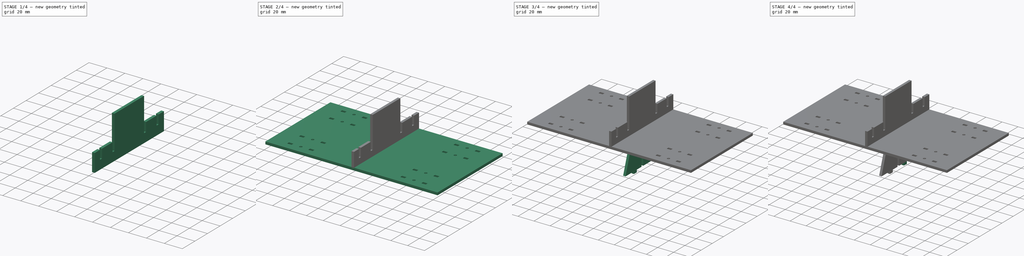
[diagram: build sequence overview — one tinted view per stage of 4, left to right]
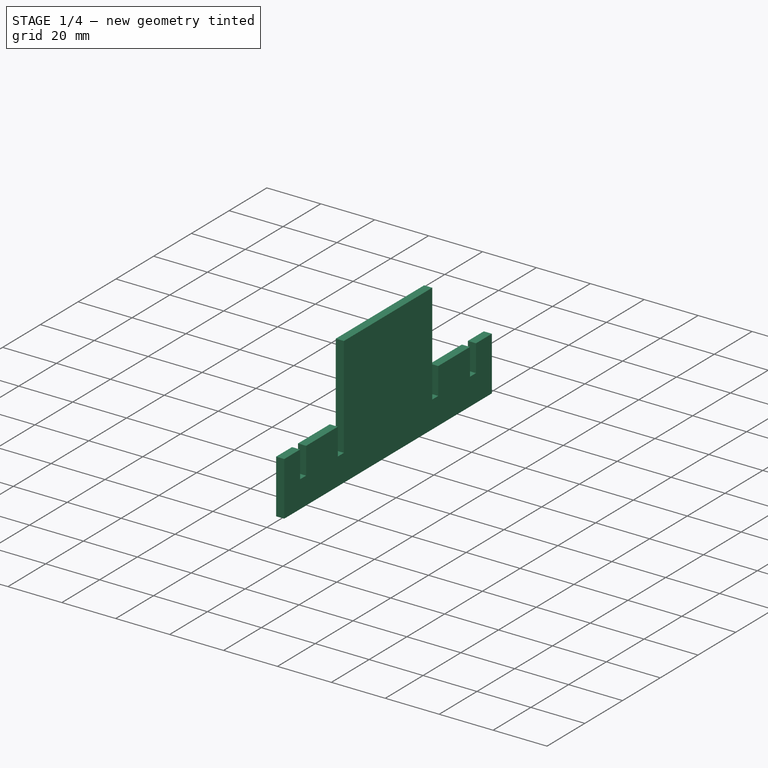
[diagram: stage 1 of 4 — iso view after this stage's code; geometry added in this stage tinted green]
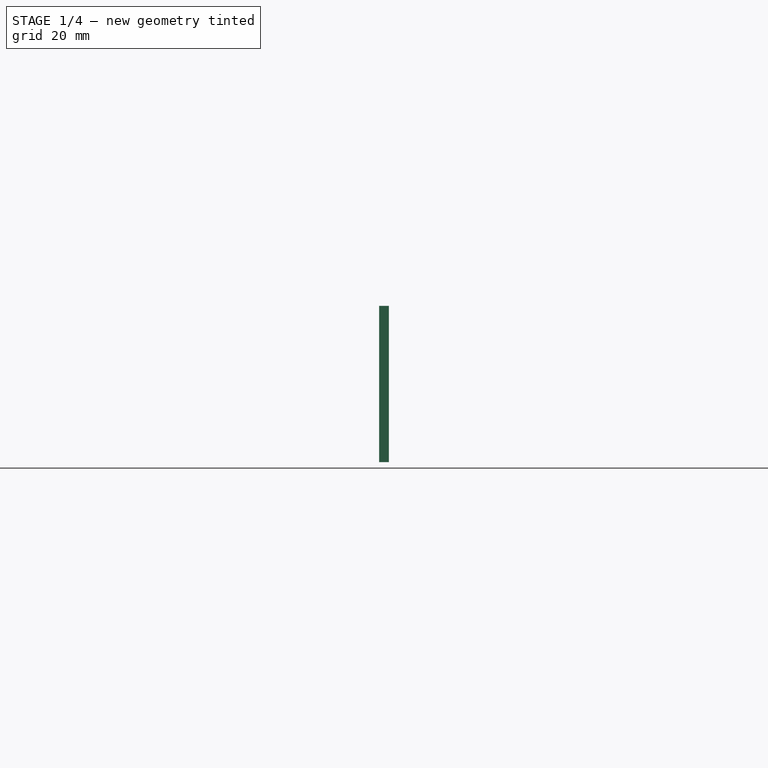
[diagram: stage 1 of 4 — front view after this stage's code; geometry added in this stage tinted green]
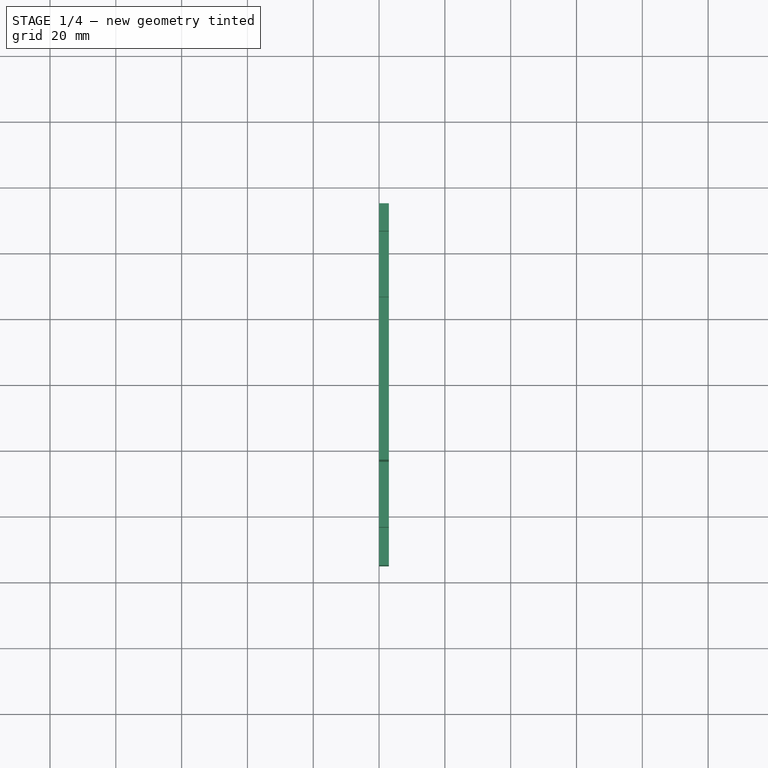
[diagram: stage 1 of 4 — top view after this stage's code; geometry added in this stage tinted green]
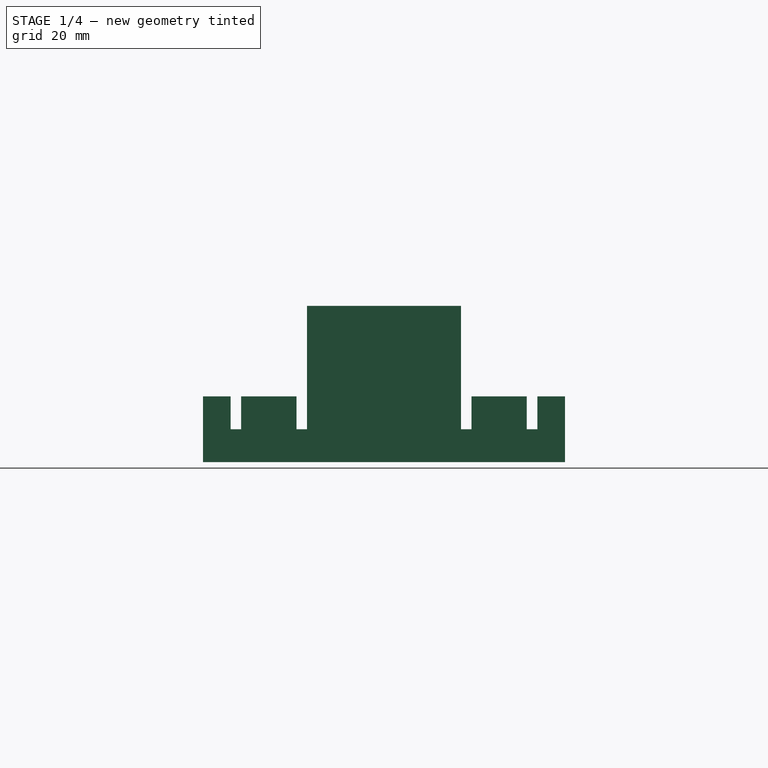
[diagram: stage 1 of 4 — right view after this stage's code; geometry added in this stage tinted green]
FCSTD DOCUMENT  (FreeCAD 0.18.1R)
Label: mount
License: All rights reserved
LicenseURL: http://en.wikipedia.org/wiki/All_rights_reserved
objects: Sketcher::SketchObject×7, PartDesign::Pad×4, PartDesign::Mirrored×4, PartDesign::Pocket×3, PartDesign::Body×3, TechDraw::DrawViewPart×3, PartDesign::LinearPattern×1, PartDesign::MultiTransform×1, TechDraw::DrawSVGTemplate×1, TechDraw::DrawPage×1
note: 30 computed .brp shape members not serialized (recipe doc carries the construction recipe); baked Part::Feature solids carry a one-line shape summary decoded from their .brp

FEATURE [PartDesign::Body] Body001  label="Base"
  Group = -> [Sketch003,Pad002,Sketch004,Pocket001,MultiTransform,LinearPattern,Mirrored001,Mirrored002]
  Origin = -> Origin001
  Tip = -> MultiTransform
FEATURE [Sketcher::SketchObject] Sketch005
  MapMode = 5
  Placement = pos=(0,0,0) rot=(0.57735,0.57735,0.57735;2.0944rad)
  Support = -> [YZ_Plane002]
  expr: Constraints[33] = Sketch.Constraints.motor_height + 20mm
  expr: Constraints[28] = Sketch003.Constraints.base_width / 2
  sketch-geometry (12):
    g0: LineSegment StartX=-55 StartY=0 StartZ=0 EndX=0 EndY=0 EndZ=0
    g1: LineSegment StartX=0 StartY=0 StartZ=0 EndX=0 EndY=47.5 EndZ=0
    g2: LineSegment StartX=0 StartY=47.5 StartZ=0 EndX=-23.4 EndY=47.5 EndZ=0
    g3: LineSegment StartX=-55 StartY=20 StartZ=0 EndX=-55 EndY=0 EndZ=0
    g4: LineSegment StartX=-43.4 StartY=20 StartZ=0 EndX=-43.4 EndY=10 EndZ=0
    g5: LineSegment StartX=-43.4 StartY=10 StartZ=0 EndX=-46.6 EndY=10 EndZ=0
    g6: LineSegment StartX=-46.6 StartY=10 StartZ=0 EndX=-46.6 EndY=20 EndZ=0
    g7: LineSegment StartX=-23.4 StartY=47.5 StartZ=0 EndX=-23.4 EndY=10 EndZ=0
    g8: LineSegment StartX=-23.4 StartY=10 StartZ=0 EndX=-26.6 EndY=10 EndZ=0
    g9: LineSegment StartX=-26.6 StartY=10 StartZ=0 EndX=-26.6 EndY=20 EndZ=0
    g10: LineSegment StartX=-26.6 StartY=20 StartZ=0 EndX=-43.4 EndY=20 EndZ=0
    g11: LineSegment StartX=-46.6 StartY=20 StartZ=0 EndX=-55 EndY=20 EndZ=0
  constraints (34):
    c: Coincident(g0,g1)
    c: Coincident(g1,g2)
    c: Coincident(g11,g3)
    c: Coincident(g3,g0)
    c: Vertical(g1)
    c: Vertical(g3)
    c: PointOnObject(g0,g-1)
    c: DistanceY(g3,g3) = 20
    c: Coincident(g4,g5)
    c: Coincident(g5,g6)
    c: Horizontal(g5)
    c: Vertical(g4)
    c: Vertical(g6)
    c: Coincident(g7,g8)
    c: Coincident(g8,g9)
    c: Horizontal(g8)
    c: Vertical(g7)
    c: Vertical(g9)
    c: Equal(g9,g4)
    c: DistanceY(g6,g6) = 10
    c: Equal(g8,g5)
    c: DistanceX(g5,g5) = 3.2
    c: Coincident(g2,g7)
    c: Coincident(g10,g9)
    c: Tangent(g10,g11)
    c: DistanceX(g4,g2) = 20
    c: DistanceX(g7,g-1) = 23.4
    c: Coincident(g0,g-1)
    c: DistanceX(g0,g0) = 55
    c: Horizontal(g10)
    c: Coincident(g6,g11)
    c: Horizontal(g2)
    c: Coincident(g4,g10)
    c: DistanceY(g1,g1) = 47.5
FEATURE [PartDesign::Pad] Pad003
  Length = 3
  Length2 = 100
  Placement = pos=(0,0,0) rot=(0.57735,0.57735,0.57735;2.0944rad)
  Profile = -> Sketch005
  Refine = true
  Type = 0
FEATURE [PartDesign::Mirrored] Mirrored003
  BaseFeature = -> Pad003
  MirrorPlane = -> Sketch005 [V_Axis]
  Originals = -> [Pad003]
  Placement = pos=(0,0,0) rot=(0.57735,0.57735,0.57735;2.0944rad)
  Refine = true
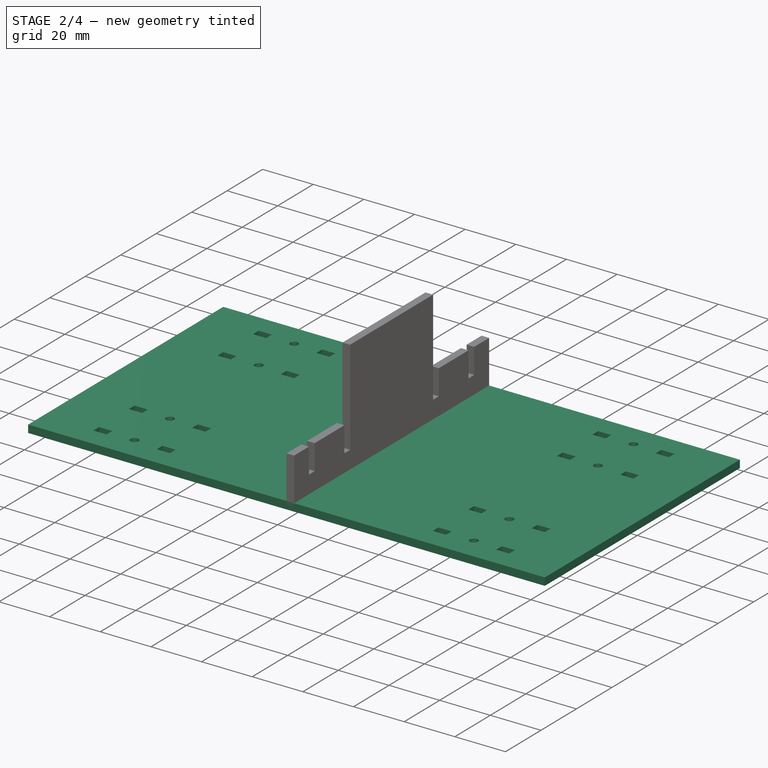
[diagram: stage 2 of 4 — iso view after this stage's code; geometry added in this stage tinted green]
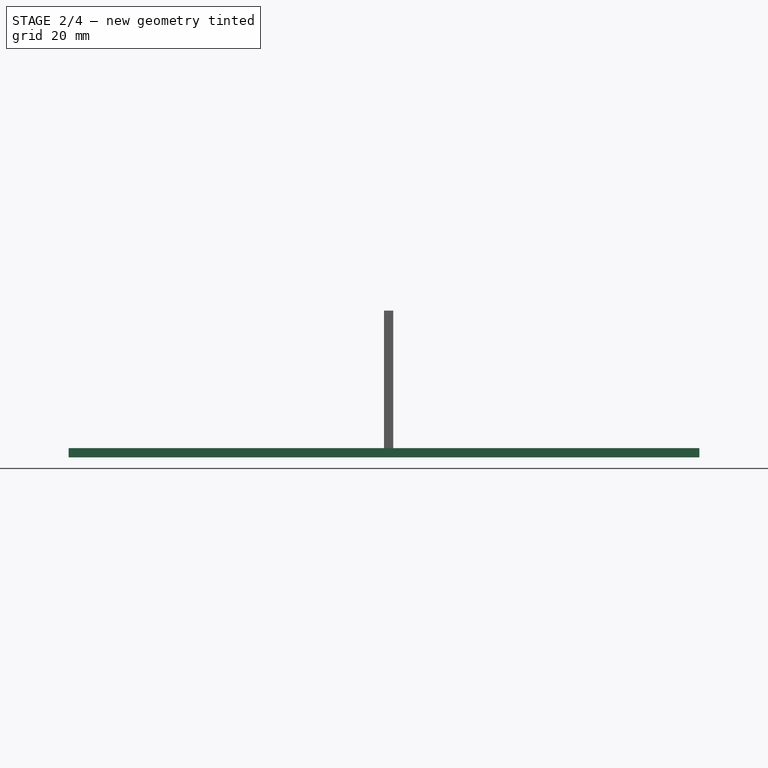
[diagram: stage 2 of 4 — front view after this stage's code; geometry added in this stage tinted green]
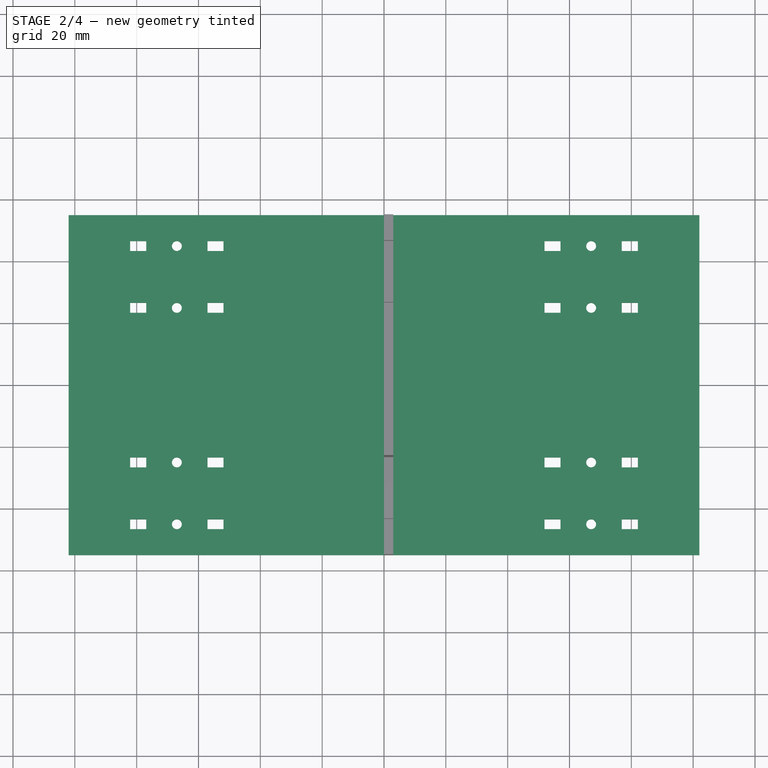
[diagram: stage 2 of 4 — top view after this stage's code; geometry added in this stage tinted green]
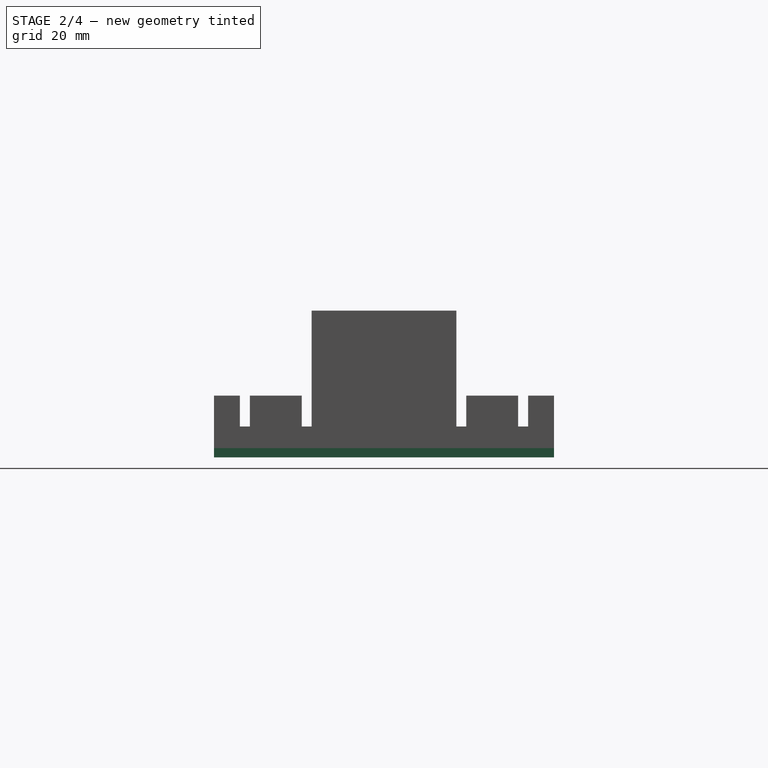
[diagram: stage 2 of 4 — right view after this stage's code; geometry added in this stage tinted green]
FEATURE [Sketcher::SketchObject] Sketch003
  MapMode = 5
  Support = -> [XY_Plane001]
  sketch-geometry (4):
    g0: LineSegment StartX=-102 StartY=55 StartZ=0 EndX=102 EndY=55 EndZ=0
    g1: LineSegment StartX=102 StartY=55 StartZ=0 EndX=102 EndY=-55 EndZ=0
    g2: LineSegment StartX=102 StartY=-55 StartZ=0 EndX=-102 EndY=-55 EndZ=0
    g3: LineSegment StartX=-102 StartY=-55 StartZ=0 EndX=-102 EndY=55 EndZ=0
  constraints (11):
    c: Coincident(g0,g1)
    c: Coincident(g1,g2)
    c: Coincident(g2,g3)
    c: Coincident(g3,g0)
    c: Horizontal(g0)
    c: Horizontal(g2)
    c: Vertical(g1)
    c: Vertical(g3)
    c: Symmetric(g0,g2,g-1)
    c: DistanceX(g0,g0) = 204  'base_length'
    c: DistanceY(g1,g1) = 110  'base_width'
FEATURE [PartDesign::Pad] Pad002
  Length = 3
  Length2 = 100
  Profile = -> Sketch003
  Refine = true
  Type = 0
FEATURE [Sketcher::SketchObject] Sketch004
  MapMode = 5
  Placement = pos=(0,0,3) rot=(0,0,1;0rad)
  Support = -> [Pad002]
  sketch-geometry (9):
    g0: LineSegment StartX=51.9 StartY=46.6 StartZ=0 EndX=57.1 EndY=46.6 EndZ=0
    g1: LineSegment StartX=57.1 StartY=46.6 StartZ=0 EndX=57.1 EndY=43.4 EndZ=0
    g2: LineSegment StartX=57.1 StartY=43.4 StartZ=0 EndX=51.9 EndY=43.4 EndZ=0
    g3: LineSegment StartX=51.9 StartY=43.4 StartZ=0 EndX=51.9 EndY=46.6 EndZ=0
    g4: LineSegment StartX=76.9 StartY=46.6 StartZ=0 EndX=82.1 EndY=46.6 EndZ=0
    g5: LineSegment StartX=82.1 StartY=46.6 StartZ=0 EndX=82.1 EndY=43.4 EndZ=0
    g6: LineSegment StartX=82.1 StartY=43.4 StartZ=0 EndX=76.9 EndY=43.4 EndZ=0
    g7: LineSegment StartX=76.9 StartY=43.4 StartZ=0 EndX=76.9 EndY=46.6 EndZ=0
    g8: Circle CenterX=67 CenterY=45 CenterZ=0 NormalX=0 NormalY=0 NormalZ=1 AngleXU=0 Radius=1.6
  constraints (26):
    c: Coincident(g0,g1)
    c: Coincident(g1,g2)
    c: Coincident(g2,g3)
    c: Coincident(g3,g0)
    c: Horizontal(g0)
    c: Horizontal(g2)
    c: Vertical(g1)
    c: Vertical(g3)
    c: Coincident(g4,g5)
    c: Coincident(g5,g6)
    c: Coincident(g6,g7)
    c: Coincident(g7,g4)
    c: Horizontal(g4)
    c: Horizontal(g6)
    c: Vertical(g5)
    c: Vertical(g7)
    c: Horizontal(g0,g4)
    c: Equal(g0,g4)
    c: Equal(g1,g7)
    c: DistanceX(g2,g2) = 5.2
    c: DistanceY(g3,g3) = 3.2
    c: Diameter(g8) = 3.2
    c: DistanceX(g1,g6) = 19.8
    c: Symmetric(g1,g4,g8)
    c: DistanceX(g8) = 67
    c: DistanceY(g8) = 45
FEATURE [PartDesign::Pocket] Pocket001
  BaseFeature = -> Pad002
  Length = 5
  Length2 = 100
  Profile = -> Sketch004
  Refine = true
  Type = 0
FEATURE [PartDesign::LinearPattern] LinearPattern
  Direction = -> Sketch004 [V_Axis]
  Length = 20
  Occurrences = 2
  Refine = true
  Reversed = true
FEATURE [PartDesign::Mirrored] Mirrored001
  MirrorPlane = -> Sketch004 [V_Axis]
  Refine = true
FEATURE [PartDesign::Mirrored] Mirrored002
  MirrorPlane = -> Sketch004 [H_Axis]
  Refine = true
FEATURE [PartDesign::MultiTransform] MultiTransform
  BaseFeature = -> Pocket001
  Originals = -> [Pocket001]
  Refine = true
  Transformations = -> [LinearPattern,Mirrored001,Mirrored002]
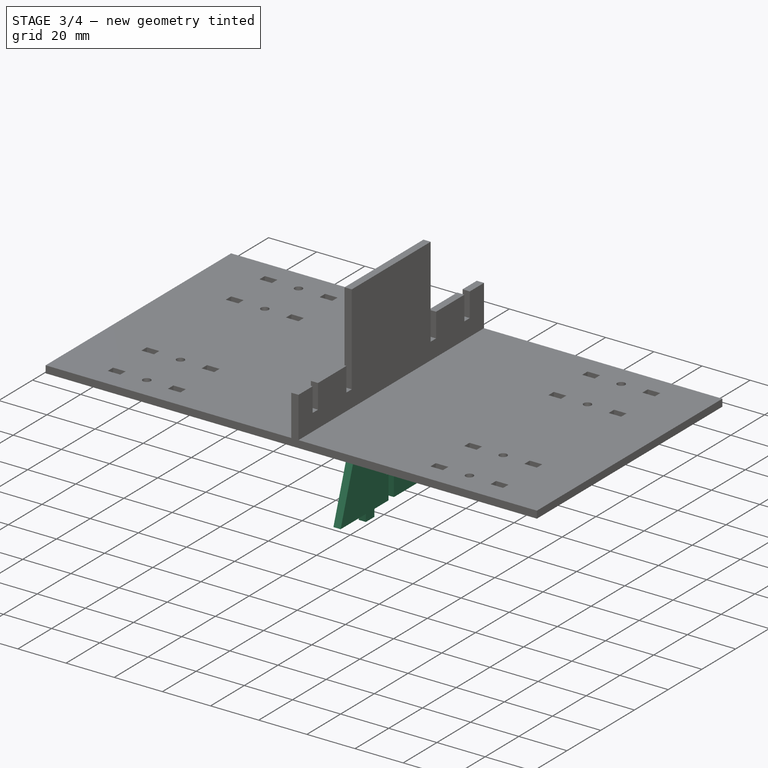
[diagram: stage 3 of 4 — iso view after this stage's code; geometry added in this stage tinted green]
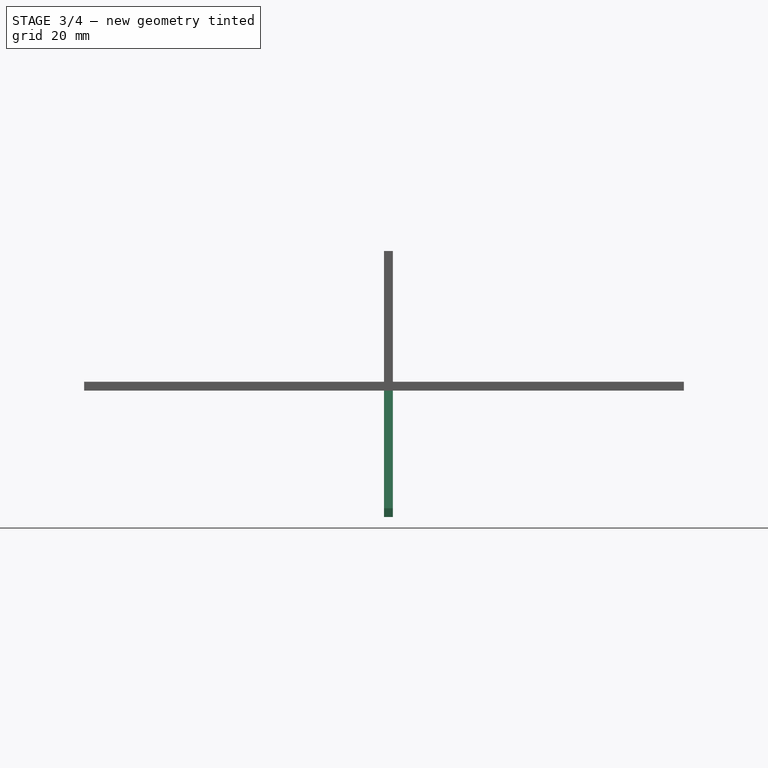
[diagram: stage 3 of 4 — front view after this stage's code; geometry added in this stage tinted green]
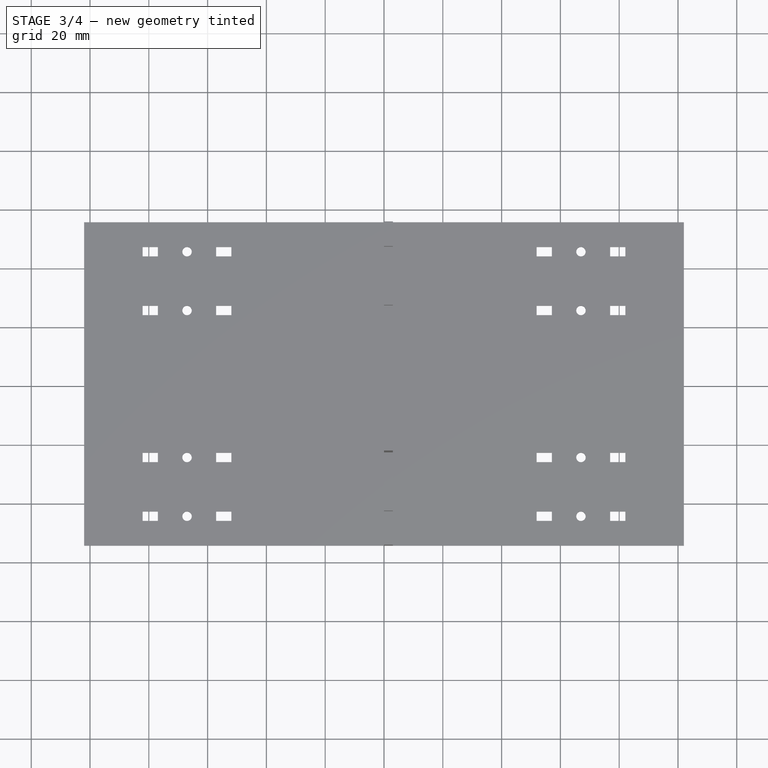
[diagram: stage 3 of 4 — top view after this stage's code; geometry added in this stage tinted green]
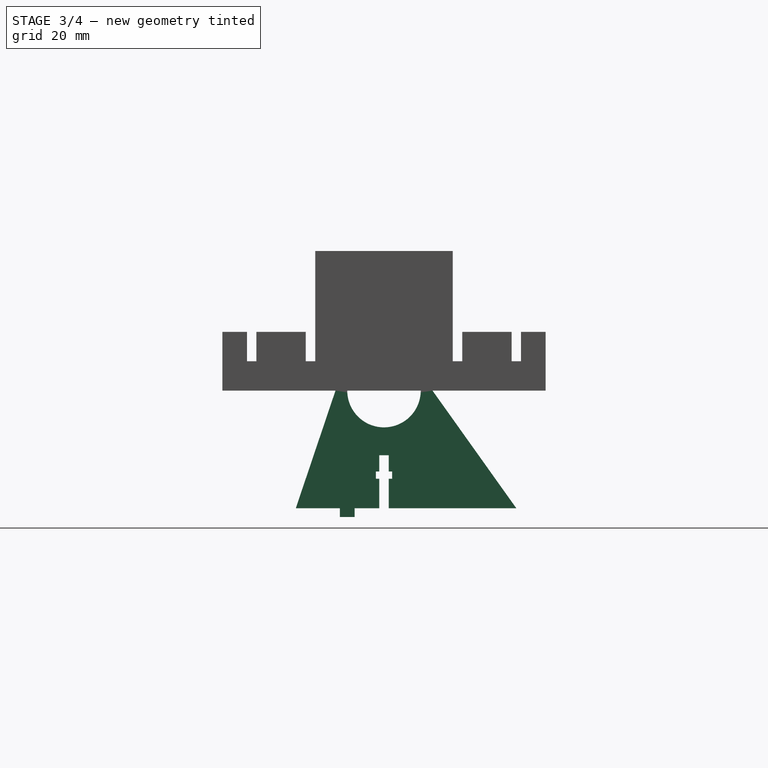
[diagram: stage 3 of 4 — right view after this stage's code; geometry added in this stage tinted green]
FEATURE [Sketcher::SketchObject] Sketch
  MapMode = 5
  Placement = pos=(0,0,0) rot=(0.57735,0.57735,0.57735;2.0944rad)
  Support = -> [YZ_Plane]
  sketch-geometry (7):
    g0: ArcOfCircle CenterX=0 CenterY=0 CenterZ=0 NormalX=0 NormalY=0 NormalZ=1 AngleXU=0 Radius=12.5 StartAngle=3.14159 EndAngle=6.28319
    g1: LineSegment StartX=-12.5 StartY=1.5e-15 StartZ=0 EndX=-16.5 EndY=1.5e-15 EndZ=0
    g2: LineSegment StartX=-16.5 StartY=1.5e-15 StartZ=0 EndX=-30 EndY=-40 EndZ=0
    g3: LineSegment StartX=-30 StartY=-40 StartZ=0 EndX=45 EndY=-40 EndZ=0
    g4: LineSegment StartX=45 StartY=-40 StartZ=0 EndX=16.5 EndY=0 EndZ=0
    g5: LineSegment StartX=16.5 StartY=0 StartZ=0 EndX=12.5 EndY=-3.1e-15 EndZ=0
    g6: GeomPoint X=0 Y=-12.5 Z=0
  constraints (21):
    c: Coincident(g0,g-1)
    c: PointOnObject(g0,g-1)
    c: PointOnObject(g0,g-1)
    c: Diameter(g0) = 25
    c: Coincident(g0,g1)
    c: Coincident(g1,g2)
    c: Coincident(g2,g3)
    c: Coincident(g3,g4)
    c: PointOnObject(g4,g-1)
    c: Coincident(g4,g5)
    c: Coincident(g5,g0)
    c: DistanceX(g1,g1) = 4
    c: Horizontal(g1)
    c: Equal(g5,g1)
    c: DistanceY(g3,g0) = 40
    c: Horizontal(g3)
    c: DistanceX(g2,g0) = 30
    c: DistanceX(g0,g3) = 45
    c: PointOnObject(g6,g0)
    c: PointOnObject(g6,g-2)
    c: DistanceY(g3,g6) = 27.5  'motor_height'
FEATURE [PartDesign::Pad] Pad
  Length = 3
  Length2 = 100
  Placement = pos=(0,0,0) rot=(0.57735,0.57735,0.57735;2.0944rad)
  Profile = -> Sketch
  Refine = true
  Type = 0
FEATURE [Sketcher::SketchObject] Sketch001
  ExternalGeometry = -> [Pad]
  MapMode = 5
  Placement = pos=(3,-1.3e-15,1e-15) rot=(0.57735,0.57735,0.57735;2.0944rad)
  Support = -> [Pad]
  sketch-geometry (12):
    g0: LineSegment StartX=1.6 StartY=-40 StartZ=0 EndX=-1.6 EndY=-40 EndZ=0
    g1: LineSegment StartX=-1.6 StartY=-40 StartZ=0 EndX=-1.6 EndY=-30 EndZ=0
    g2: LineSegment StartX=-1.6 StartY=-22 StartZ=0 EndX=1.6 EndY=-22 EndZ=0
    g3: LineSegment StartX=1.6 StartY=-22 StartZ=0 EndX=1.6 EndY=-27.5 EndZ=0
    g4: LineSegment StartX=-2.75 StartY=-27.5 StartZ=0 EndX=-1.6 EndY=-27.5 EndZ=0
    g5: LineSegment StartX=2.75 StartY=-27.5 StartZ=0 EndX=2.75 EndY=-30 EndZ=0
    g6: LineSegment StartX=2.75 StartY=-30 StartZ=0 EndX=1.6 EndY=-30 EndZ=0
    g7: LineSegment StartX=-2.75 StartY=-30 StartZ=0 EndX=-2.75 EndY=-27.5 EndZ=0
    g8: LineSegment StartX=1.6 StartY=-27.5 StartZ=0 EndX=2.75 EndY=-27.5 EndZ=0
    g9: LineSegment StartX=-1.6 StartY=-27.5 StartZ=0 EndX=-1.6 EndY=-22 EndZ=0
    g10: LineSegment StartX=1.6 StartY=-30 StartZ=0 EndX=1.6 EndY=-40 EndZ=0
    g11: LineSegment StartX=-1.6 StartY=-30 StartZ=0 EndX=-2.75 EndY=-30 EndZ=0
  constraints (30):
    c: Coincident(g0,g1)
    c: Coincident(g9,g2)
    c: Coincident(g2,g3)
    c: Coincident(g10,g0)
    c: Horizontal(g2)
    c: Vertical(g1)
    c: Vertical(g3)
    c: PointOnObject(g0,g-3)
    c: DistanceX(g2,g2) = 3.2
    c: Symmetric(g0,g0,g-2)
    c: DistanceY(g10,g3) = 18
    c: Coincident(g8,g5)
    c: Coincident(g5,g6)
    c: Coincident(g11,g7)
    c: Coincident(g7,g4)
    c: Horizontal(g4)
    c: Vertical(g5)
    c: Vertical(g7)
    c: DistanceY(g5,g5) = 2.5
    c: Symmetric(g11,g5,g-2)
    c: DistanceY(g0,g11) = 10
    c: DistanceX(g4,g8) = 5.5
    c: Tangent(g4,g8)
    c: Coincident(g9,g4)
    c: Tangent(g1,g9)
    c: Coincident(g3,g8)
    c: Tangent(g3,g10)
    c: Coincident(g6,g10)
    c: Coincident(g11,g1)
    c: Tangent(g6,g11)
FEATURE [PartDesign::Pocket] Pocket
  BaseFeature = -> Pad
  Length = 5
  Length2 = 100
  Placement = pos=(0,0,0) rot=(0.57735,0.57735,0.57735;2.0944rad)
  Profile = -> Sketch001
  Refine = true
  Type = 1
FEATURE [Sketcher::SketchObject] Sketch002
  ExternalGeometry = -> [Pocket]
  MapMode = 5
  Placement = pos=(3,-2e-15,1.3e-15) rot=(0.57735,0.57735,0.57735;2.0944rad)
  Support = -> [Pocket]
  sketch-geometry (4):
    g0: LineSegment StartX=-15 StartY=-40 StartZ=0 EndX=-10 EndY=-40 EndZ=0
    g1: LineSegment StartX=-10 StartY=-40 StartZ=0 EndX=-10 EndY=-43 EndZ=0
    g2: LineSegment StartX=-10 StartY=-43 StartZ=0 EndX=-15 EndY=-43 EndZ=0
    g3: LineSegment StartX=-15 StartY=-43 StartZ=0 EndX=-15 EndY=-40 EndZ=0
  constraints (12):
    c: Coincident(g0,g1)
    c: Coincident(g1,g2)
    c: Coincident(g2,g3)
    c: Coincident(g3,g0)
    c: Horizontal(g0)
    c: Horizontal(g2)
    c: Vertical(g1)
    c: Vertical(g3)
    c: PointOnObject(g0,g-3)
    c: DistanceY(g1,g1) = 3
    c: DistanceX(g2,g2) = 5
    c: DistanceX(g0,g-1) = 10
FEATURE [PartDesign::Pad] Pad001
  BaseFeature = -> Pocket
  Length = 3
  Length2 = 100
  Placement = pos=(0,0,0) rot=(0.57735,0.57735,0.57735;2.0944rad)
  Profile = -> Sketch002
  Refine = true
  Reversed = true
  Type = 0
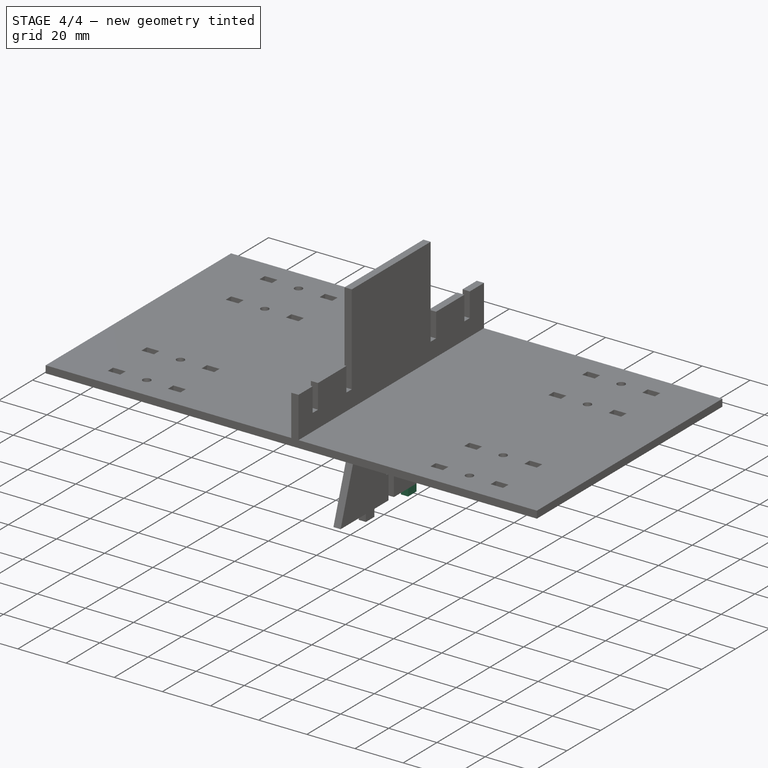
[diagram: stage 4 of 4 — iso view after this stage's code; geometry added in this stage tinted green]
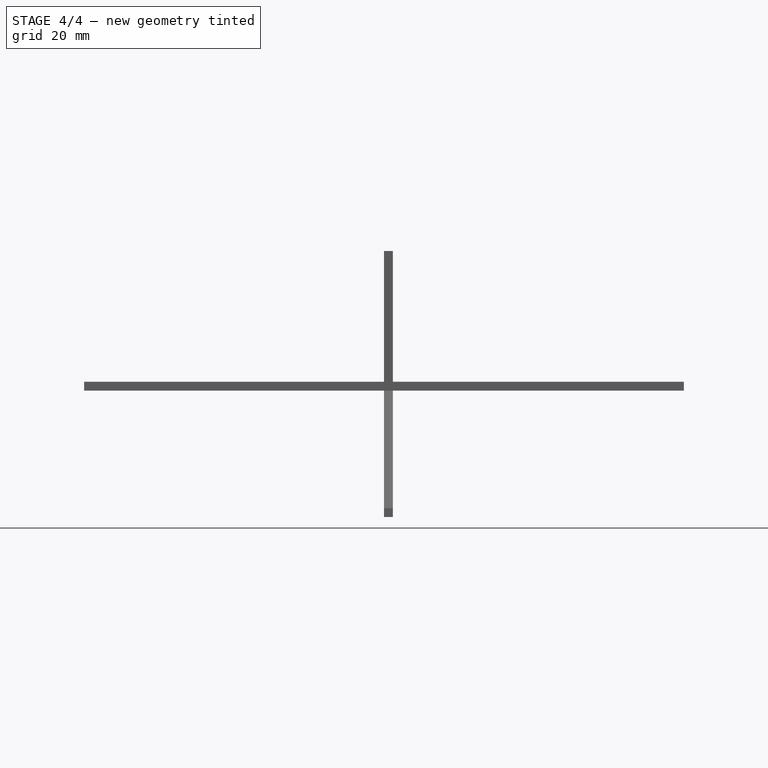
[diagram: stage 4 of 4 — front view after this stage's code; geometry added in this stage tinted green]
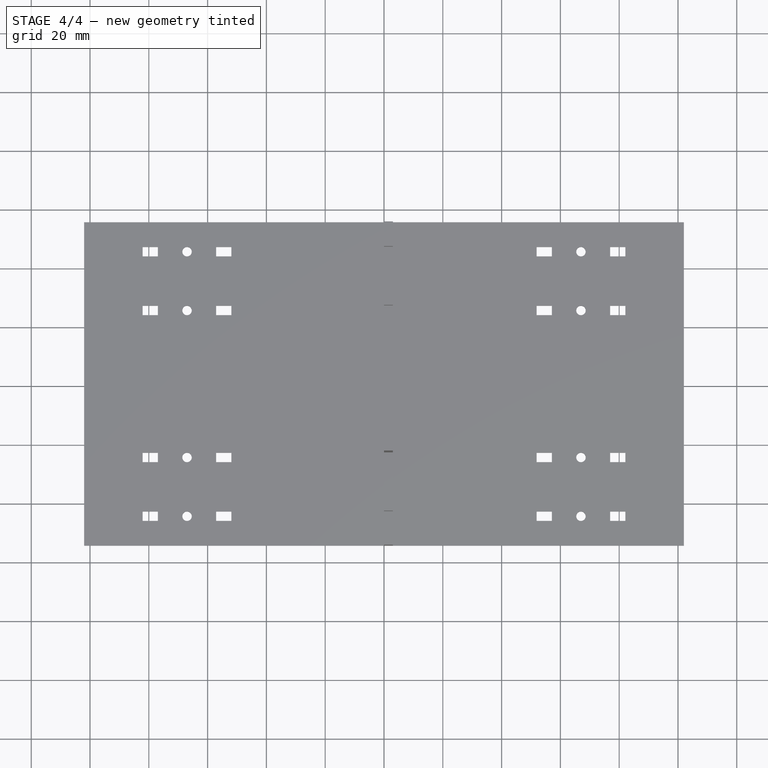
[diagram: stage 4 of 4 — top view after this stage's code; geometry added in this stage tinted green]
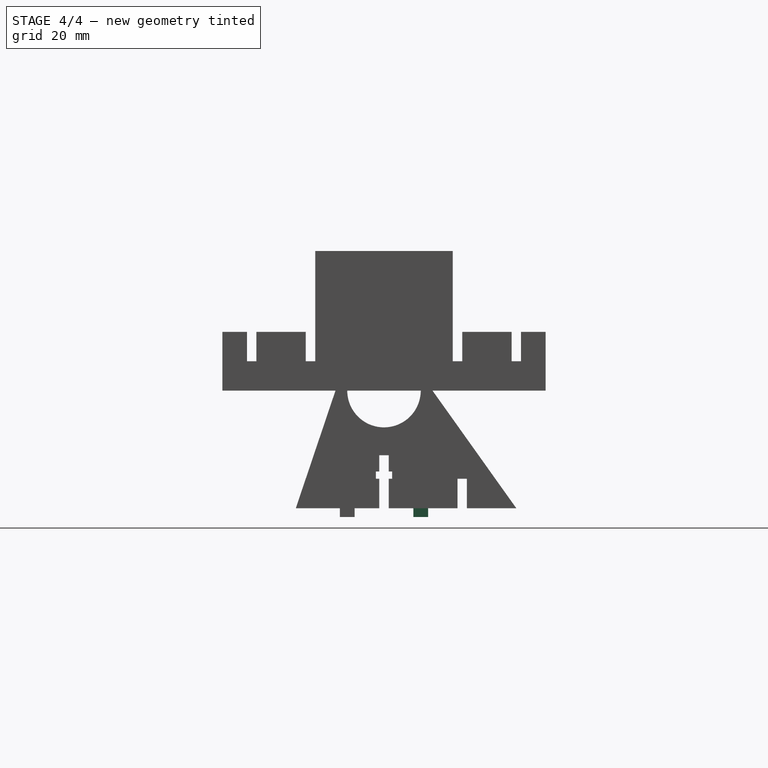
[diagram: stage 4 of 4 — right view after this stage's code; geometry added in this stage tinted green]
FEATURE [PartDesign::Mirrored] Mirrored
  BaseFeature = -> Pad001
  MirrorPlane = -> Sketch002 [V_Axis]
  Originals = -> [Pad001]
  Placement = pos=(0,0,0) rot=(0.57735,0.57735,0.57735;2.0944rad)
  Refine = true
FEATURE [PartDesign::Body] Body002  label="strut"
  Group = -> [Sketch005,Pad003,Mirrored003]
  Origin = -> Origin002
  Placement = pos=(-42,0,3) rot=(0,0,1;0rad)
  Tip = -> Mirrored003
FEATURE [Sketcher::SketchObject] Sketch006
  ExternalGeometry = -> [Mirrored]
  MapMode = 5
  Placement = pos=(3,-8e-16,3.6e-15) rot=(0.57735,0.57735,0.57735;2.0944rad)
  Support = -> [Mirrored]
  sketch-geometry (4):
    g0: LineSegment StartX=25 StartY=-30 StartZ=0 EndX=28.2 EndY=-30 EndZ=0
    g1: LineSegment StartX=28.2 StartY=-30 StartZ=0 EndX=28.2 EndY=-40 EndZ=0
    g2: LineSegment StartX=28.2 StartY=-40 StartZ=0 EndX=25 EndY=-40 EndZ=0
    g3: LineSegment StartX=25 StartY=-40 StartZ=0 EndX=25 EndY=-30 EndZ=0
  constraints (12):
    c: Coincident(g0,g1)
    c: Coincident(g1,g2)
    c: Coincident(g2,g3)
    c: Coincident(g3,g0)
    c: Horizontal(g0)
    c: Horizontal(g2)
    c: Vertical(g1)
    c: Vertical(g3)
    c: PointOnObject(g1,g-3)
    c: DistanceX(g0,g0) = 3.2
    c: DistanceY(g1,g1) = 10
    c: DistanceX(g-1,g2) = 25
FEATURE [PartDesign::Pocket] Pocket002
  BaseFeature = -> Mirrored
  Length = 5
  Length2 = 100
  Placement = pos=(0,0,0) rot=(0.57735,0.57735,0.57735;2.0944rad)
  Profile = -> Sketch006
  Refine = true
  Type = 1
FEATURE [PartDesign::Body] Body  label="Stilt"
  Group = -> [Sketch,Pad,Sketch001,Pocket,Sketch002,Pad001,Mirrored,Sketch006,Pocket002]
  Origin = -> Origin
  Placement = pos=(-67,-44,44) rot=(0,0,-1;1.5708rad)
  Tip = -> Pocket002
FEATURE [TechDraw::DrawSVGTemplate] Template
  Height = 210
  Orientation = 1
  Width = 297
FEATURE [TechDraw::DrawViewPart] View
  CoarseView = false
  Direction = (0,-1,0)
  Focus = 100
  HardHidden = false
  IsoCount = 0
  IsoHidden = false
  IsoVisible = false
  LockPosition = false
  Perspective = false
  Rotation = 0
  ScaleType = 0
  SeamHidden = false
  SeamVisible = false
  SmoothHidden = false
  SmoothVisible = false
  Source = -> [Pocket002]
  X = 49.4756
  Y = 172.866
FEATURE [TechDraw::DrawViewPart] View001
  CoarseView = false
  Direction = (0,0,1)
  Focus = 100
  HardHidden = false
  IsoCount = 0
  IsoHidden = false
  IsoVisible = false
  LockPosition = false
  Perspective = false
  Rotation = 0
  ScaleType = 0
  SeamHidden = false
  SeamVisible = false
  SmoothHidden = false
  SmoothVisible = false
  Source = -> [Body001]
  X = 116.915
  Y = 66.1585
FEATURE [TechDraw::DrawViewPart] View002
  CoarseView = false
  Direction = (1,0,0)
  Focus = 100
  HardHidden = false
  IsoCount = 0
  IsoHidden = false
  IsoVisible = false
  LockPosition = false
  Perspective = false
  Rotation = 0
  ScaleType = 0
  SeamHidden = false
  SeamVisible = false
  SmoothHidden = false
  SmoothVisible = false
  Source = -> [Body002]
  X = 153.622
  Y = 168.598
FEATURE [TechDraw::DrawPage] Page
  KeepUpdated = true
  ProjectionType = 0
  Template = -> Template
  Views = -> [View,View001,View002]
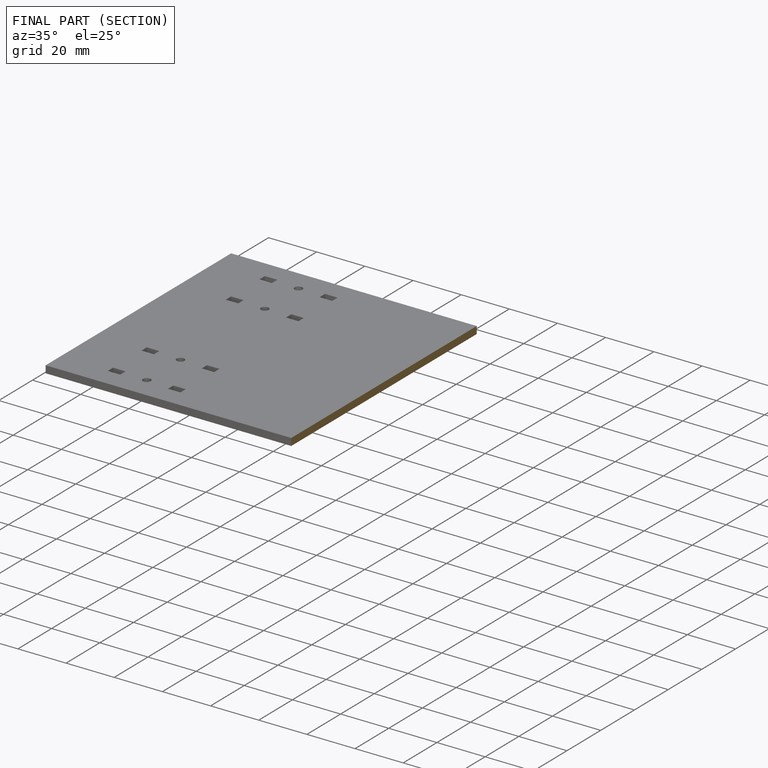
[diagram: finished part — half-section view (interior)]
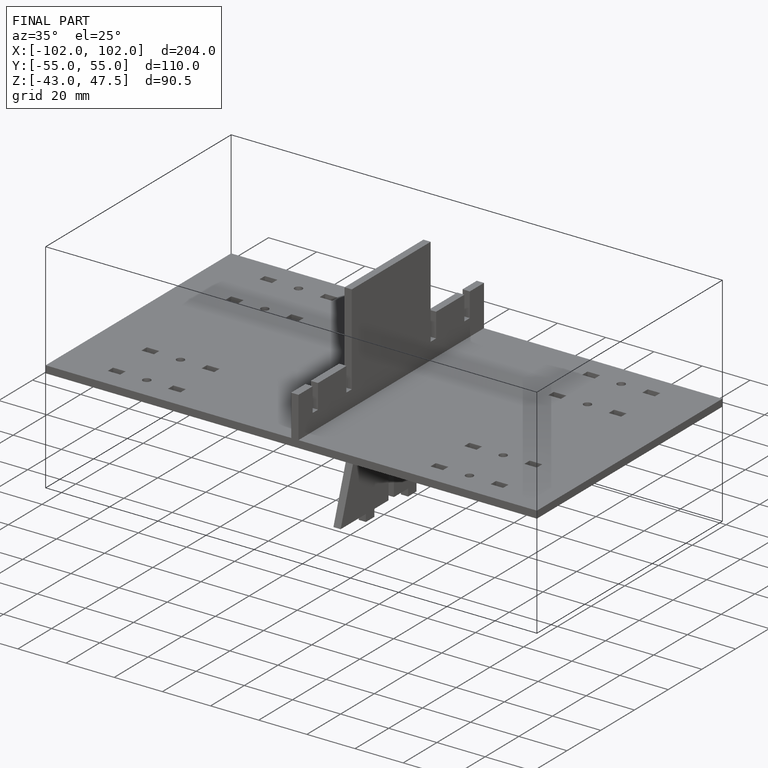
[diagram: finished part — iso view with bounding-box wireframe]
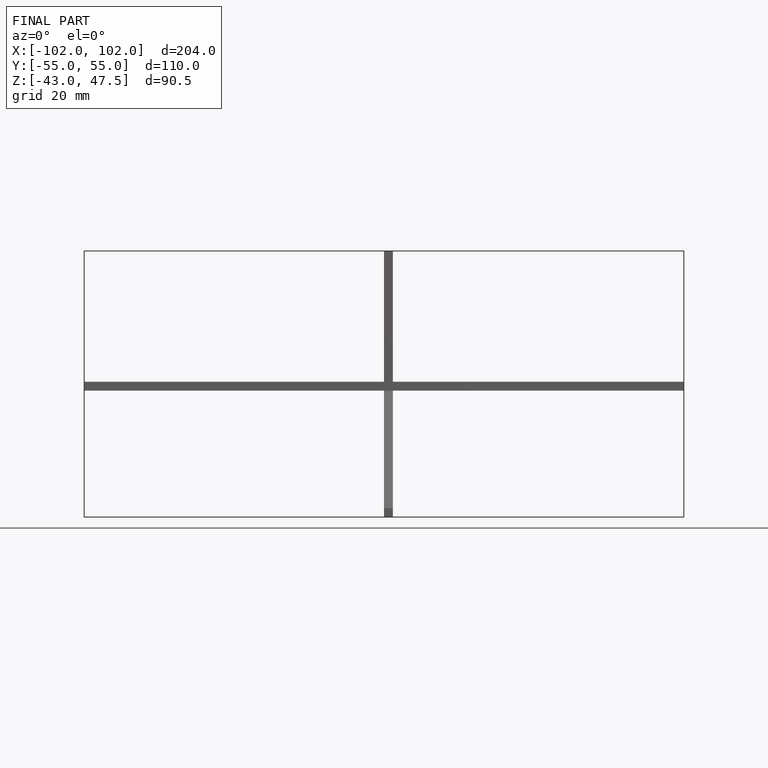
[diagram: finished part — front view with bounding-box wireframe]
